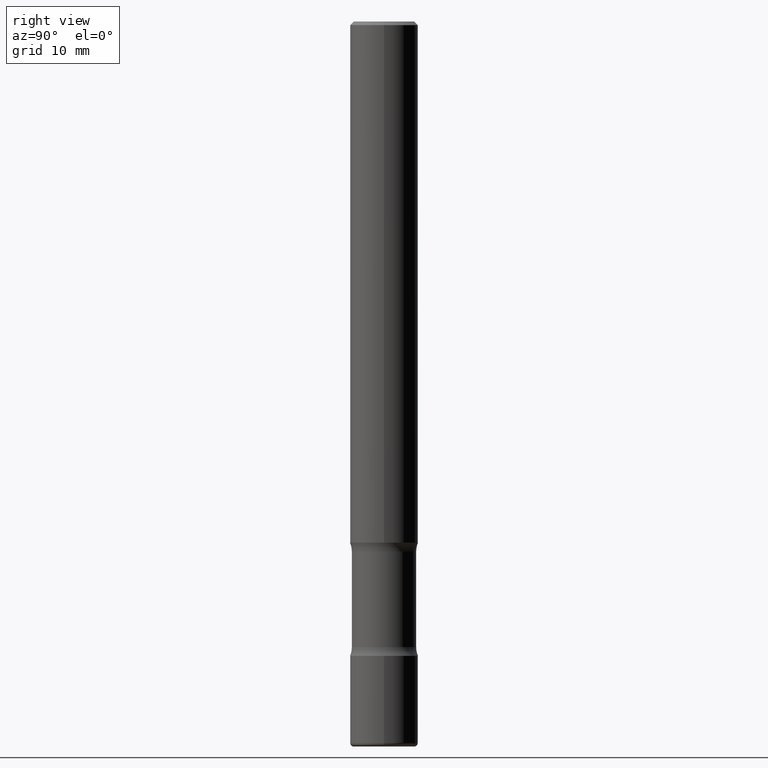
[diagram: clean part render]
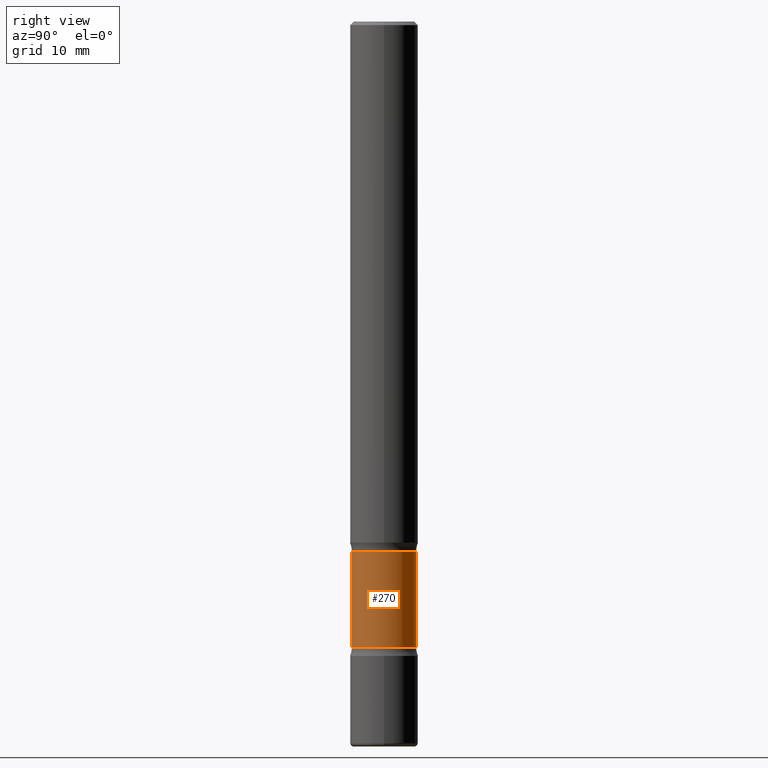
[diagram: same view with one face highlighted and labeled with its STEP entity id]
A machine part, right view. The second image highlights one B-rep face of the part: STEP entity #270.
In plain terms, the highlighted cylindrical surface (edge-blend (fillet) strip) has radius 4.5085 mm, axis along (0, -0, -1).
Its self-contained STEP definition (entity closure, byte-faithful):
#13 = VERTEX_POINT ( 'NONE', #390 ) ;
#32 = AXIS2_PLACEMENT_3D ( 'NONE', #283, #447, #55 ) ;
#42 = CARTESIAN_POINT ( 'NONE',  ( -1.252040884593220094E-15, -0.1775000000000120093, -3.451010205144334986 ) ) ;
#52 = DIRECTION ( 'NONE',  ( 2.052439932101464102E-29, -4.054321056345256912E-15, -1.000000000000000000 ) ) ;
#55 = DIRECTION ( 'NONE',  ( 6.982962677686265922E-15, 1.000000000000000000, -3.078138584410437524E-15 ) ) ;
#76 = CARTESIAN_POINT ( 'NONE',  ( 9.585360787698712522E-29, -1.424734521412364332E-14, -4.000000000000000888 ) ) ;
#83 = CARTESIAN_POINT ( 'NONE',  ( 7.376914475311787671E-29, -9.884854382564577022E-15, -2.923989794855664126 ) ) ;
#122 = DIRECTION ( 'NONE',  ( 6.982962677686266711E-15, 1.000000000000000000, -3.078138584410443835E-15 ) ) ;
#134 = VECTOR ( 'NONE', #52, 39.37007874015748143 ) ;
#166 = DIRECTION ( 'NONE',  ( 2.052439932101464102E-29, -4.054321056345256912E-15, -1.000000000000000000 ) ) ;
#183 = ORIENTED_EDGE ( 'NONE', *, *, #336, .T. ) ;
#194 = CIRCLE ( 'NONE', #32, 0.1774999999999999911 ) ;
#206 = ORIENTED_EDGE ( 'NONE', *, *, #519, .F. ) ;
#252 = CARTESIAN_POINT ( 'NONE',  ( 1.239475875289406768E-15, 0.1774999999999855860, -4.000000000000001776 ) ) ;
#257 = EDGE_LOOP ( 'NONE', ( #183, #368, #206, #338 ) ) ;
#260 = LINE ( 'NONE', #252, #134 ) ;
#270 = ADVANCED_FACE ( 'NONE', ( #468 ), #462, .T. ) ;
#283 = CARTESIAN_POINT ( 'NONE',  ( 8.458592210420752426E-29, -1.202156432912165511E-14, -3.451010205144335430 ) ) ;
#329 = DIRECTION ( 'NONE',  ( 6.982962677686265922E-15, 1.000000000000000000, -3.078138584410440285E-15 ) ) ;
#336 = EDGE_CURVE ( 'NONE', #397, #13, #510, .T. ) ;
#338 = ORIENTED_EDGE ( 'NONE', *, *, #436, .F. ) ;
#340 = AXIS2_PLACEMENT_3D ( 'NONE', #76, #423, #329 ) ;
#356 = VERTEX_POINT ( 'NONE', #42 ) ;
#368 = ORIENTED_EDGE ( 'NONE', *, *, #474, .T. ) ;
#390 = CARTESIAN_POINT ( 'NONE',  ( -1.252040884593229560E-15, -0.1775000000000095113, -2.923989794855663682 ) ) ;
#397 = VERTEX_POINT ( 'NONE', #559 ) ;
#423 = DIRECTION ( 'NONE',  ( 2.052439932101463822E-29, -4.054321056345256912E-15, -1.000000000000000000 ) ) ;
#427 = AXIS2_PLACEMENT_3D ( 'NONE', #83, #485, #122 ) ;
#430 = LINE ( 'NONE', #438, #549 ) ;
#436 = EDGE_CURVE ( 'NONE', #397, #489, #260, .T. ) ;
#438 = CARTESIAN_POINT ( 'NONE',  ( -1.217738394604349609E-15, -0.1775000000000140632, -4.000000000000000888 ) ) ;
#447 = DIRECTION ( 'NONE',  ( 2.052439932101463822E-29, -4.054321056345256912E-15, -1.000000000000000000 ) ) ;
#462 = CYLINDRICAL_SURFACE ( 'NONE', #340, 0.1774999999999998246 ) ;
#468 = FACE_OUTER_BOUND ( 'NONE', #257, .T. ) ;
#474 = EDGE_CURVE ( 'NONE', #13, #356, #430, .T. ) ;
#485 = DIRECTION ( 'NONE',  ( 2.052439932101463822E-29, -4.054321056345256912E-15, -1.000000000000000000 ) ) ;
#489 = VERTEX_POINT ( 'NONE', #522 ) ;
#510 = CIRCLE ( 'NONE', #427, 0.1774999999999996303 ) ;
#519 = EDGE_CURVE ( 'NONE', #489, #356, #194, .T. ) ;
#522 = CARTESIAN_POINT ( 'NONE',  ( 1.239475875289396907E-15, 0.1774999999999879730, -3.451010205144335874 ) ) ;
#549 = VECTOR ( 'NONE', #166, 39.37007874015748143 ) ;
#559 = CARTESIAN_POINT ( 'NONE',  ( 1.239475875289383496E-15, 0.1774999999999897771, -2.923989794855664570 ) ) ;